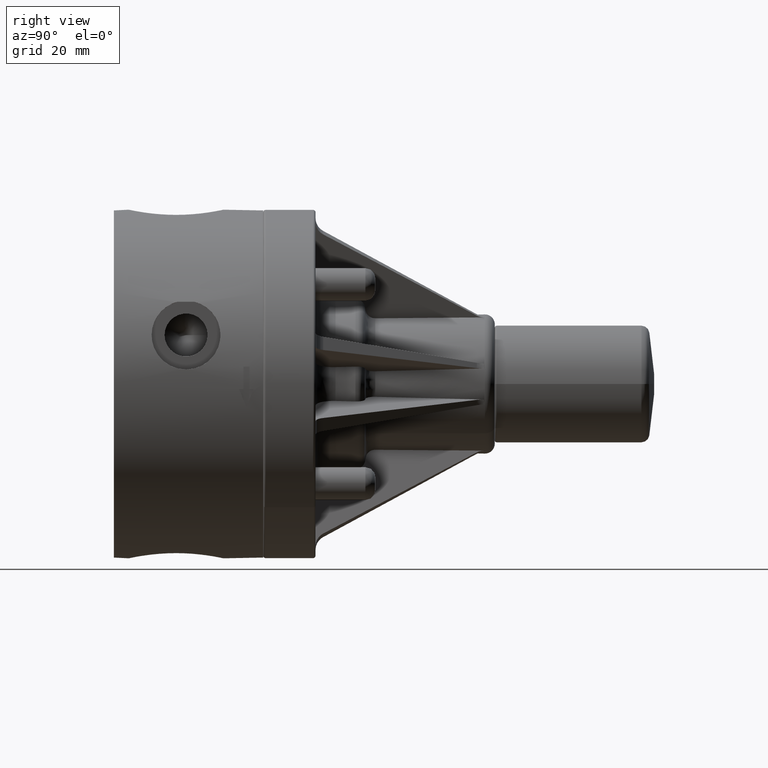
[diagram: clean part render]
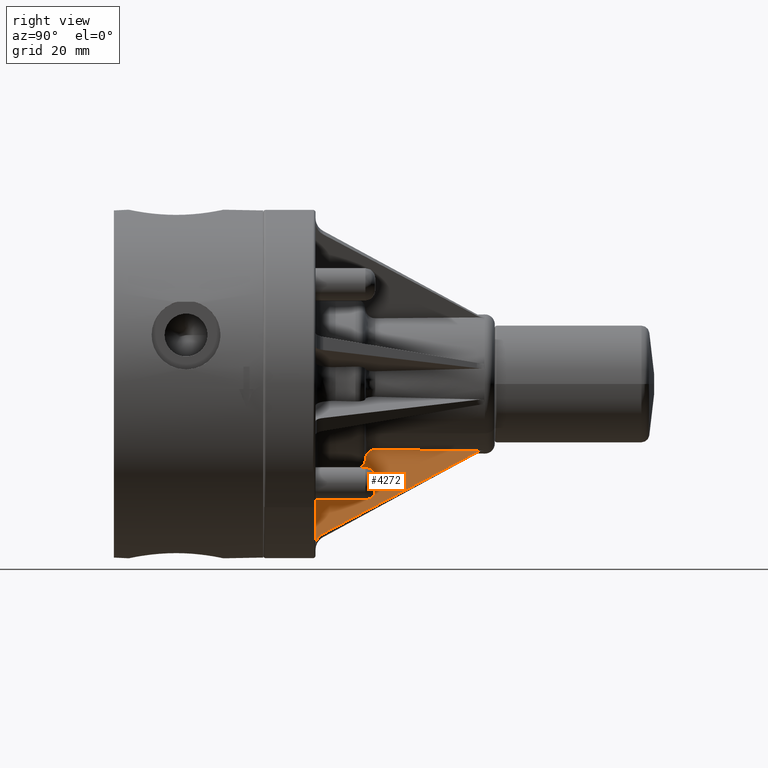
[diagram: same view with one face highlighted and labeled with its STEP entity id]
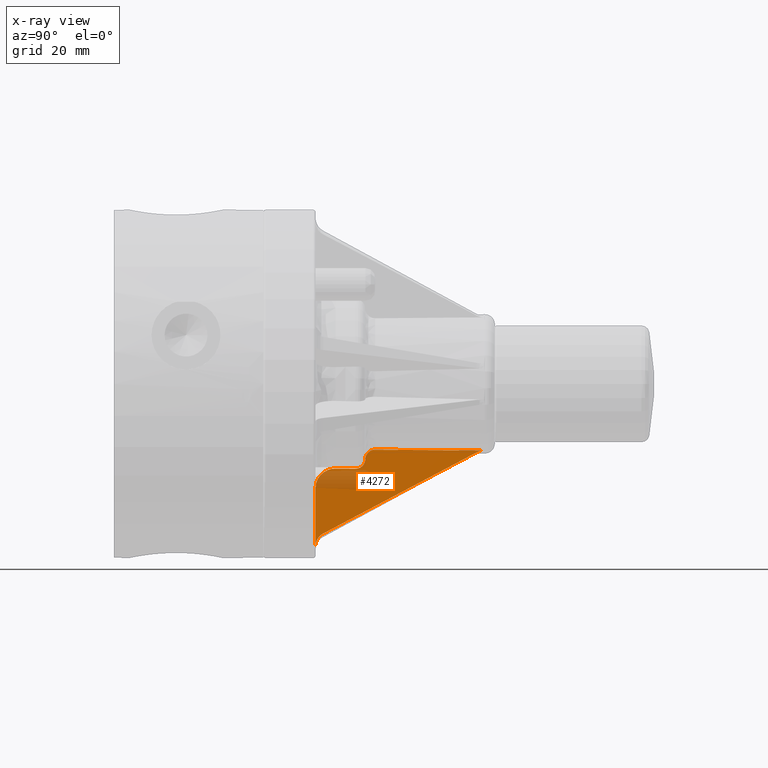
[diagram: x-ray of the same camera — body ghosted, the highlighted face saturated]
A machine part, right view. The second image highlights one B-rep face of the part: STEP entity #4272.
The next image is the same camera in x-ray: the body ghosted, the highlighted face saturated — about 15% of this face is hidden behind the body in this view.
In plain terms, the highlighted planar face has unit normal (0.9656, 0.0262, 0.2587).
Its self-contained STEP definition (entity closure, byte-faithful):
#1608=CARTESIAN_POINT('',(0.233066265259575,2.625000000000000,-0.660060691147378));
#1609=VERTEX_POINT('',#1608);
#1617=CARTESIAN_POINT('',(0.205873536191282,3.716826314709517,-0.669041169956002));
#1618=VERTEX_POINT('',#1617);
#1619=CARTESIAN_POINT('',(9.744670E-016,4.698192150791786,4.177302E-016));
#1620=DIRECTION('',(0.965594827632935,0.026176948307873,0.258730354279914));
#1621=DIRECTION('',(0.025284990424008,-0.999657324975557,0.006775092764742));
#1622=AXIS2_PLACEMENT_3D('',#1619,#1620,#1621);
#1623=ELLIPSE('',#1622,26.741085009877324,0.700000000000000);
#1624=EDGE_CURVE('',#1609,#1618,#1623,.T.);
#3968=CARTESIAN_POINT('',(0.351738712061063,2.025000000000000,-1.042247513039788));
#3969=VERTEX_POINT('',#3968);
#3970=CARTESIAN_POINT('',(0.294889353784947,2.225000000000000,-0.850317745918721));
#3971=VERTEX_POINT('',#3970);
#3972=CARTESIAN_POINT('',(0.351738712061063,2.025000000000000,-1.042247513039788));
#3973=CARTESIAN_POINT('',(0.348537639079766,2.025000000000000,-1.030300946034853));
#3974=CARTESIAN_POINT('',(0.345010761710597,2.026217885510781,-1.017261679619073));
#3975=CARTESIAN_POINT('',(0.338030746517059,2.031471903867086,-0.991743481651409));
#3976=CARTESIAN_POINT('',(0.334577611925530,2.035508160370529,-0.979264574675697));
#3977=CARTESIAN_POINT('',(0.328427882329546,2.044957053876606,-0.957269459691268));
#3978=CARTESIAN_POINT('',(0.325164375341696,2.051236633620060,-0.945725219969630));
#3979=CARTESIAN_POINT('',(0.318989866973379,2.066183871431071,-0.924193922308002));
#3980=CARTESIAN_POINT('',(0.316078890618082,2.074851699085820,-0.914206974921143));
#3981=CARTESIAN_POINT('',(0.311117580447898,2.092303274375320,-0.897456769996678));
#3982=CARTESIAN_POINT('',(0.308610185517923,2.102693896922299,-0.889150312132855));
#3983=CARTESIAN_POINT('',(0.304174612086460,2.125073180475888,-0.874860742497524));
#3984=CARTESIAN_POINT('',(0.302246460332150,2.137061915289674,-0.868877738015255));
#3985=CARTESIAN_POINT('',(0.299229312162522,2.159869939347136,-0.859925181186410));
#3986=CARTESIAN_POINT('',(0.297862393533268,2.172789140109283,-0.856130866791390));
#3987=CARTESIAN_POINT('',(0.295845446409451,2.199185125918652,-0.851274121792154));
#3988=CARTESIAN_POINT('',(0.295195396746753,2.212661894506162,-0.850211610522077));
#3989=CARTESIAN_POINT('',(0.294889353784947,2.225000000000000,-0.850317745918722));
#3990=B_SPLINE_CURVE_WITH_KNOTS('',3,(#3972,#3973,#3974,#3975,#3976,#3977,#3978,#3979,#3980,#3981,#3982,#3983,#3984,#3985,#3986,#3987,#3988,#3989),.UNSPECIFIED.,.F.,.U.,(4,2,2,2,2,2,2,2,4),(0.753448376052435,0.847692507537499,0.941936639022563,1.036029227545029,1.130121816067494,1.224189454701716,1.318257093335938,1.412305853021050,1.506354612706161),.UNSPECIFIED.);
#3991=EDGE_CURVE('',#3969,#3971,#3990,.T.);
#4017=CARTESIAN_POINT('',(0.289924441456004,2.425000000000000,-0.852023367195068));
#4018=VERTEX_POINT('',#4017);
#4019=CARTESIAN_POINT('',(9.744670E-016,4.698192150791787,4.177302E-016));
#4020=DIRECTION('',(0.965594827632935,0.026176948307873,0.258730354279914));
#4021=DIRECTION('',(0.025284990424008,-0.999657324975557,0.006775092764742));
#4022=AXIS2_PLACEMENT_3D('',#4019,#4020,#4021);
#4023=ELLIPSE('',#4022,34.381395012699386,0.899999999999999);
#4024=EDGE_CURVE('',#3971,#4018,#4023,.T.);
#4043=CARTESIAN_POINT('',(0.261498699056623,2.525000000000000,-0.756054515489255));
#4044=VERTEX_POINT('',#4043);
#4045=CARTESIAN_POINT('',(0.289924441456004,2.425000000000000,-0.852023367195068));
#4046=CARTESIAN_POINT('',(0.289618045600296,2.437332582950760,-0.852127626832481));
#4047=CARTESIAN_POINT('',(0.288508785437159,2.451851543244707,-0.849456762005471));
#4048=CARTESIAN_POINT('',(0.285494301436124,2.474649469832383,-0.840513126381387));
#4049=CARTESIAN_POINT('',(0.283055930976755,2.486959886403183,-0.832658505802163));
#4050=CARTESIAN_POINT('',(0.278097345064870,2.504417600930554,-0.815919089083213));
#4051=CARTESIAN_POINT('',(0.274699160947284,2.512648294680131,-0.804069630711784));
#4052=CARTESIAN_POINT('',(0.268546371436128,2.522107735331144,-0.782064163071973));
#4053=CARTESIAN_POINT('',(0.264702404045471,2.525000000000000,-0.768010905280098));
#4054=CARTESIAN_POINT('',(0.261498699056623,2.525000000000000,-0.756054515489255));
#4055=B_SPLINE_CURVE_WITH_KNOTS('',3,(#4045,#4046,#4047,#4048,#4049,#4050,#4051,#4052,#4053,#4054),.UNSPECIFIED.,.F.,.U.,(4,2,2,2,4),(0.0,0.094006637274788,0.188018182703628,0.282140015038897,0.376461636561581),.UNSPECIFIED.);
#4056=EDGE_CURVE('',#4018,#4044,#4055,.T.);
#4093=CARTESIAN_POINT('',(0.261498699056623,2.525000000000000,-0.756054515489257));
#4094=CARTESIAN_POINT('',(0.258293952528635,2.525000000000000,-0.744094238621427));
#4095=CARTESIAN_POINT('',(0.254448747250478,2.527893656764100,-0.730036501815231));
#4096=CARTESIAN_POINT('',(0.248293373985872,2.537354889651928,-0.708021572805170));
#4097=CARTESIAN_POINT('',(0.244893303798883,2.545587286834391,-0.696165247871097));
#4098=CARTESIAN_POINT('',(0.239932856347432,2.563047231230306,-0.679419109398036));
#4099=CARTESIAN_POINT('',(0.237493927599321,2.575357319234435,-0.671562372014245));
#4100=CARTESIAN_POINT('',(0.234479939212179,2.598153870403676,-0.662620446888940));
#4101=CARTESIAN_POINT('',(0.233371631616806,2.612670159398392,-0.659952866825508));
#4102=CARTESIAN_POINT('',(0.233066265259575,2.625000000000000,-0.660060691147378));
#4103=B_SPLINE_CURVE_WITH_KNOTS('',3,(#4093,#4094,#4095,#4096,#4097,#4098,#4099,#4100,#4101,#4102),.UNSPECIFIED.,.F.,.U.,(4,2,2,2,4),(0.376854774728702,0.471207060641792,0.565372503968186,0.659390030644902,0.753375817397422),.UNSPECIFIED.);
#4104=EDGE_CURVE('',#4044,#1609,#4103,.T.);
#4127=CARTESIAN_POINT('',(0.472752058183462,2.102278556963050,-1.501694098702735));
#4128=VERTEX_POINT('',#4127);
#4135=CARTESIAN_POINT('',(0.508661951182971,2.025000000000001,-1.627893014331028));
#4136=VERTEX_POINT('',#4135);
#4137=CARTESIAN_POINT('',(0.504867902493642,2.175000000000000,-1.628909626613377));
#4138=DIRECTION('',(-0.965594827632935,-0.026176948307873,-0.258730354279914));
#4139=DIRECTION('',(0.025284990423988,-0.999657324975557,0.006775092764818));
#4140=AXIS2_PLACEMENT_3D('',#4137,#4138,#4139);
#4141=ELLIPSE('',#4140,0.150051418873630,0.150000000000000);
#4142=EDGE_CURVE('',#4128,#4136,#4141,.F.);
#4167=CARTESIAN_POINT('',(0.212592282616698,3.643880267457618,-0.686735583513019));
#4168=VERTEX_POINT('',#4167);
#4176=CARTESIAN_POINT('',(0.472752058183462,2.102278556963050,-1.501694098702735));
#4177=DIRECTION('',(-0.147561599141228,0.874390413136918,0.462241257216545));
#4178=VECTOR('',#4177,1.763058797687405);
#4179=LINE('',#4176,#4178);
#4180=EDGE_CURVE('',#4168,#4128,#4179,.F.);
#4206=CARTESIAN_POINT('',(0.212592282616697,3.643880267457618,-0.686735583513018));
#4207=CARTESIAN_POINT('',(0.210716809406298,3.654993563903389,-0.680860605878618));
#4208=CARTESIAN_POINT('',(0.209194109968328,3.666843569171221,-0.676376734130283));
#4209=CARTESIAN_POINT('',(0.206926927087252,3.691453470614588,-0.670405390143145));
#4210=CARTESIAN_POINT('',(0.206191881737944,3.704115211044677,-0.668943210478521));
#4211=CARTESIAN_POINT('',(0.205873536191282,3.716826314709517,-0.669041169956002));
#4212=B_SPLINE_CURVE_WITH_KNOTS('',3,(#4206,#4207,#4208,#4209,#4210,#4211),.UNSPECIFIED.,.F.,.U.,(4,2,4),(-0.193739459944158,-0.096891857130678,0.0),.UNSPECIFIED.);
#4213=EDGE_CURVE('',#1618,#4168,#4212,.F.);
#4251=CARTESIAN_POINT('',(-0.268796109016565,2.503713207108849,1.225186334661035));
#4252=DIRECTION('',(0.965594827632935,0.026176948307873,0.258730354279914));
#4253=DIRECTION('',(0.258819045102521,5.878205E-017,-0.965925826289068));
#4254=AXIS2_PLACEMENT_3D('',#4251,#4252,#4253);
#4255=PLANE('',#4254);
#4256=CARTESIAN_POINT('',(0.508661951182971,2.025000000000001,-1.627893014331027));
#4257=DIRECTION('',(-0.258819045102521,0.0,0.965925826289068));
#4258=VECTOR('',#4257,0.606304837651142);
#4259=LINE('',#4256,#4258);
#4260=EDGE_CURVE('',#4136,#3969,#4259,.T.);
#4261=ORIENTED_EDGE('',*,*,#4260,.F.);
#4262=ORIENTED_EDGE('',*,*,#4142,.F.);
#4263=ORIENTED_EDGE('',*,*,#4180,.F.);
#4264=ORIENTED_EDGE('',*,*,#4213,.F.);
#4265=ORIENTED_EDGE('',*,*,#1624,.F.);
#4266=ORIENTED_EDGE('',*,*,#4104,.F.);
#4267=ORIENTED_EDGE('',*,*,#4056,.F.);
#4268=ORIENTED_EDGE('',*,*,#4024,.F.);
#4269=ORIENTED_EDGE('',*,*,#3991,.F.);
#4270=EDGE_LOOP('',(#4261,#4262,#4263,#4264,#4265,#4266,#4267,#4268,#4269));
#4271=FACE_OUTER_BOUND('',#4270,.T.);
#4272=ADVANCED_FACE('',(#4271),#4255,.T.);